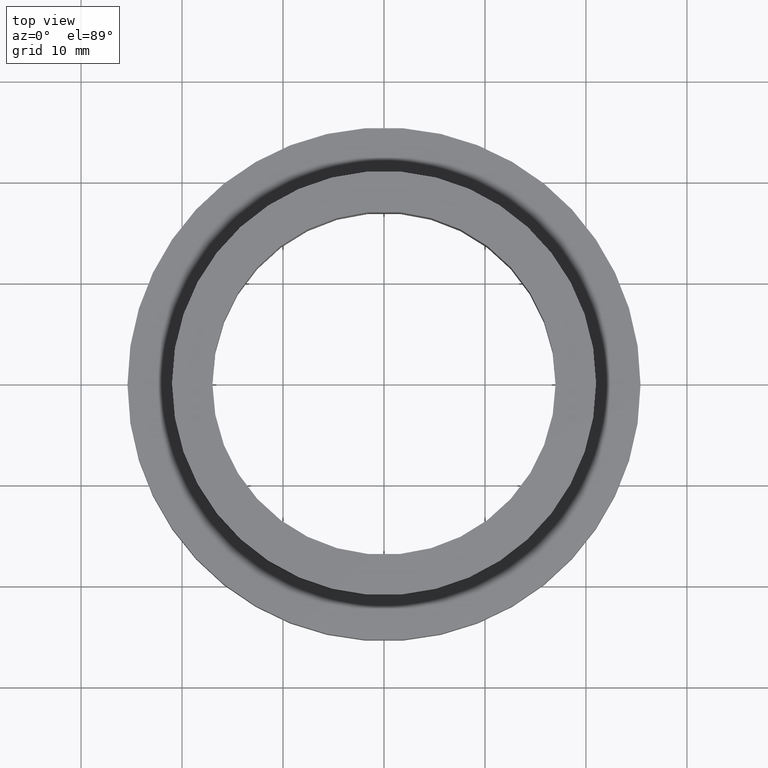
[diagram: clean part render]
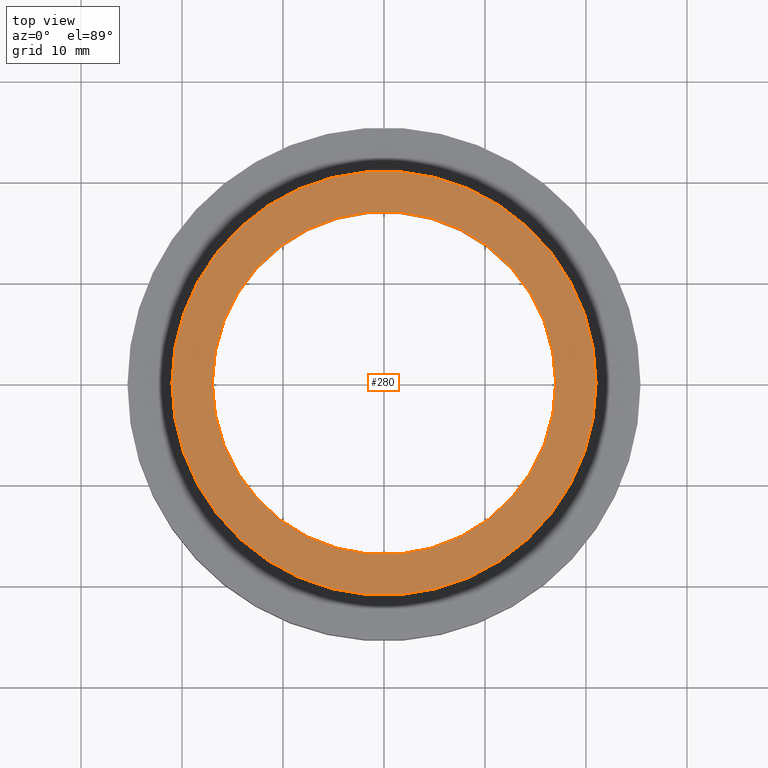
[diagram: same view with one face highlighted and labeled with its STEP entity id]
A machine part, top view. The second image highlights one B-rep face of the part: STEP entity #280.
In plain terms, the highlighted planar face has unit normal (-0, 0, -1).
Its self-contained STEP definition (entity closure, byte-faithful):
#10 = EDGE_CURVE ( 'NONE', #219, #157, #46, .T. ) ;
#12 = ORIENTED_EDGE ( 'NONE', *, *, #338, .F. ) ;
#26 = CIRCLE ( 'NONE', #164, 17.00000000000000400 ) ;
#45 = DIRECTION ( 'NONE',  ( -1.000000000000000000, 0.0000000000000000000, 0.0000000000000000000 ) ) ;
#46 = CIRCLE ( 'NONE', #204, 21.00000000000000400 ) ;
#55 = DIRECTION ( 'NONE',  ( -1.000000000000000000, 0.0000000000000000000, 0.0000000000000000000 ) ) ;
#83 = DIRECTION ( 'NONE',  ( -0.0000000000000000000, -0.0000000000000000000, -1.000000000000000000 ) ) ;
#88 = FACE_OUTER_BOUND ( 'NONE', #358, .T. ) ;
#90 = CARTESIAN_POINT ( 'NONE',  ( 0.0000000000000000000, 0.0000000000000000000, 0.0000000000000000000 ) ) ;
#118 = CARTESIAN_POINT ( 'NONE',  ( -17.00000000000000400, 0.0000000000000000000, 0.0000000000000000000 ) ) ;
#133 = DIRECTION ( 'NONE',  ( -0.0000000000000000000, -0.0000000000000000000, -1.000000000000000000 ) ) ;
#140 = CARTESIAN_POINT ( 'NONE',  ( 0.0000000000000000000, 0.0000000000000000000, 0.0000000000000000000 ) ) ;
#146 = CARTESIAN_POINT ( 'NONE',  ( 17.00000000000000400, 2.081899558550500700E-015, 0.0000000000000000000 ) ) ;
#151 = DIRECTION ( 'NONE',  ( -1.000000000000000000, 0.0000000000000000000, 0.0000000000000000000 ) ) ;
#157 = VERTEX_POINT ( 'NONE', #325 ) ;
#164 = AXIS2_PLACEMENT_3D ( 'NONE', #90, #301, #55 ) ;
#176 = DIRECTION ( 'NONE',  ( -0.0000000000000000000, -0.0000000000000000000, -1.000000000000000000 ) ) ;
#204 = AXIS2_PLACEMENT_3D ( 'NONE', #140, #176, #45 ) ;
#217 = AXIS2_PLACEMENT_3D ( 'NONE', #339, #396, #151 ) ;
#219 = VERTEX_POINT ( 'NONE', #426 ) ;
#242 = AXIS2_PLACEMENT_3D ( 'NONE', #329, #83, #294 ) ;
#244 = CIRCLE ( 'NONE', #346, 17.00000000000000400 ) ;
#280 = ADVANCED_FACE ( 'NONE', ( #88, #416 ), #427, .F. ) ;
#294 = DIRECTION ( 'NONE',  ( -1.000000000000000000, 0.0000000000000000000, 0.0000000000000000000 ) ) ;
#301 = DIRECTION ( 'NONE',  ( -0.0000000000000000000, -0.0000000000000000000, -1.000000000000000000 ) ) ;
#303 = VERTEX_POINT ( 'NONE', #146 ) ;
#309 = EDGE_CURVE ( 'NONE', #303, #315, #26, .T. ) ;
#315 = VERTEX_POINT ( 'NONE', #118 ) ;
#319 = ORIENTED_EDGE ( 'NONE', *, *, #10, .F. ) ;
#325 = CARTESIAN_POINT ( 'NONE',  ( -21.00000000000000400, 0.0000000000000000000, 0.0000000000000000000 ) ) ;
#329 = CARTESIAN_POINT ( 'NONE',  ( 0.0000000000000000000, 0.0000000000000000000, 0.0000000000000000000 ) ) ;
#338 = EDGE_CURVE ( 'NONE', #157, #219, #349, .T. ) ;
#339 = CARTESIAN_POINT ( 'NONE',  ( 17.00000000000000400, 0.0000000000000000000, 0.0000000000000000000 ) ) ;
#346 = AXIS2_PLACEMENT_3D ( 'NONE', #379, #133, #353 ) ;
#349 = CIRCLE ( 'NONE', #242, 21.00000000000000400 ) ;
#353 = DIRECTION ( 'NONE',  ( -1.000000000000000000, 0.0000000000000000000, 0.0000000000000000000 ) ) ;
#358 = EDGE_LOOP ( 'NONE', ( #12, #319 ) ) ;
#376 = EDGE_LOOP ( 'NONE', ( #413, #388 ) ) ;
#379 = CARTESIAN_POINT ( 'NONE',  ( 0.0000000000000000000, 0.0000000000000000000, 0.0000000000000000000 ) ) ;
#382 = EDGE_CURVE ( 'NONE', #315, #303, #244, .T. ) ;
#388 = ORIENTED_EDGE ( 'NONE', *, *, #309, .T. ) ;
#396 = DIRECTION ( 'NONE',  ( -0.0000000000000000000, 0.0000000000000000000, -1.000000000000000000 ) ) ;
#413 = ORIENTED_EDGE ( 'NONE', *, *, #382, .T. ) ;
#416 = FACE_BOUND ( 'NONE', #376, .T. ) ;
#426 = CARTESIAN_POINT ( 'NONE',  ( 21.00000000000000400, 2.571758278209442100E-015, 0.0000000000000000000 ) ) ;
#427 = PLANE ( 'NONE',  #217 ) ;